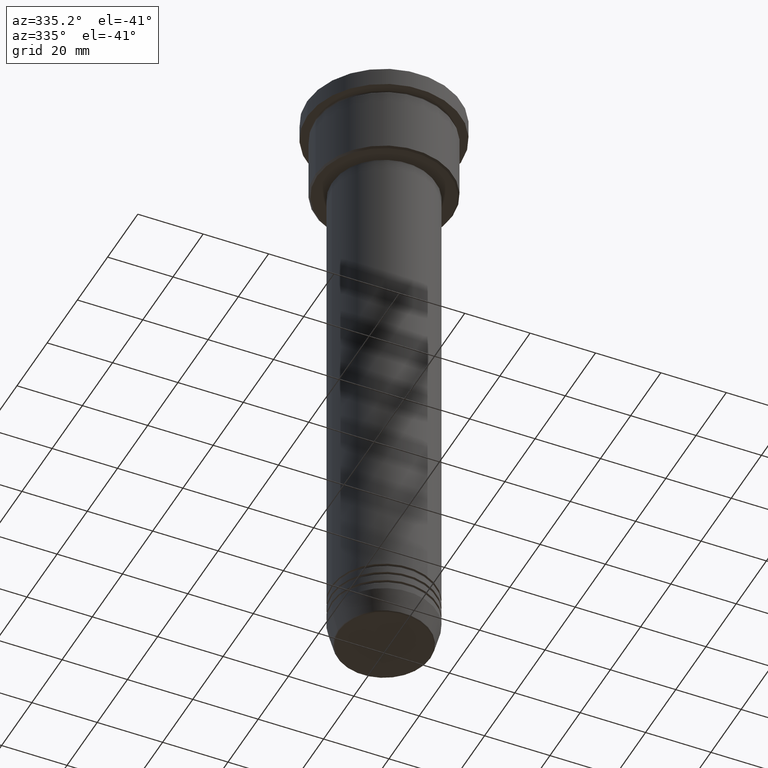
[diagram: clean part render]
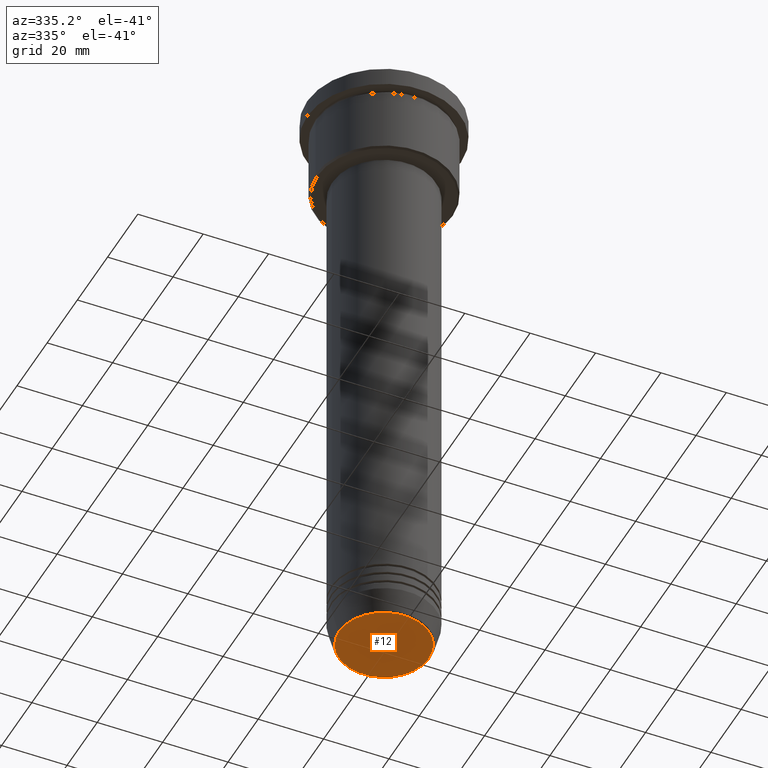
[diagram: same view with one face highlighted and labeled with its STEP entity id]
A machine part, auxiliary view. The second image highlights one B-rep face of the part: STEP entity #12.
In plain terms, the highlighted planar face has unit normal (0, -0, 1).
Its self-contained STEP definition (entity closure, byte-faithful):
#11 = CARTESIAN_POINT ( 'NONE',  ( 0.000000000000000000, 0.000000000000000000, -192.0000000000000000 ) ) ;
#12 = ADVANCED_FACE ( 'NONE', ( #261 ), #141, .F. ) ;
#141 = PLANE ( 'NONE',  #998 ) ;
#148 = CARTESIAN_POINT ( 'NONE',  ( 0.000000000000000000, 0.000000000000000000, -192.0000000000000000 ) ) ;
#198 = DIRECTION ( 'NONE',  ( 0.000000000000000000, 0.000000000000000000, -1.000000000000000000 ) ) ;
#232 = CARTESIAN_POINT ( 'NONE',  ( 13.74069215899266538, 0.000000000000000000, -192.0000000000000000 ) ) ;
#242 = DIRECTION ( 'NONE',  ( 0.000000000000000000, 0.000000000000000000, -1.000000000000000000 ) ) ;
#252 = CARTESIAN_POINT ( 'NONE',  ( 0.000000000000000000, 0.000000000000000000, -192.0000000000000000 ) ) ;
#261 = FACE_OUTER_BOUND ( 'NONE', #818, .T. ) ;
#339 = CARTESIAN_POINT ( 'NONE',  ( -13.74069215899266538, 1.712322416342416577E-15, -192.0000000000000000 ) ) ;
#378 = DIRECTION ( 'NONE',  ( 1.000000000000000000, 0.000000000000000000, 0.000000000000000000 ) ) ;
#528 = DIRECTION ( 'NONE',  ( 1.000000000000000000, 0.000000000000000000, 0.000000000000000000 ) ) ;
#532 = ORIENTED_EDGE ( 'NONE', *, *, #1078, .T. ) ;
#533 = EDGE_CURVE ( 'NONE', #758, #759, #1025, .T. ) ;
#558 = ORIENTED_EDGE ( 'NONE', *, *, #533, .T. ) ;
#674 = AXIS2_PLACEMENT_3D ( 'NONE', #11, #198, #378 ) ;
#689 = DIRECTION ( 'NONE',  ( 1.000000000000000000, 0.000000000000000000, 0.000000000000000000 ) ) ;
#725 = DIRECTION ( 'NONE',  ( 0.000000000000000000, -0.000000000000000000, 1.000000000000000000 ) ) ;
#758 = VERTEX_POINT ( 'NONE', #339 ) ;
#759 = VERTEX_POINT ( 'NONE', #232 ) ;
#818 = EDGE_LOOP ( 'NONE', ( #532, #558 ) ) ;
#840 = AXIS2_PLACEMENT_3D ( 'NONE', #148, #242, #689 ) ;
#983 = CIRCLE ( 'NONE', #674, 13.74069215899266538 ) ;
#998 = AXIS2_PLACEMENT_3D ( 'NONE', #252, #725, #528 ) ;
#1025 = CIRCLE ( 'NONE', #840, 13.74069215899266538 ) ;
#1078 = EDGE_CURVE ( 'NONE', #759, #758, #983, .T. ) ;